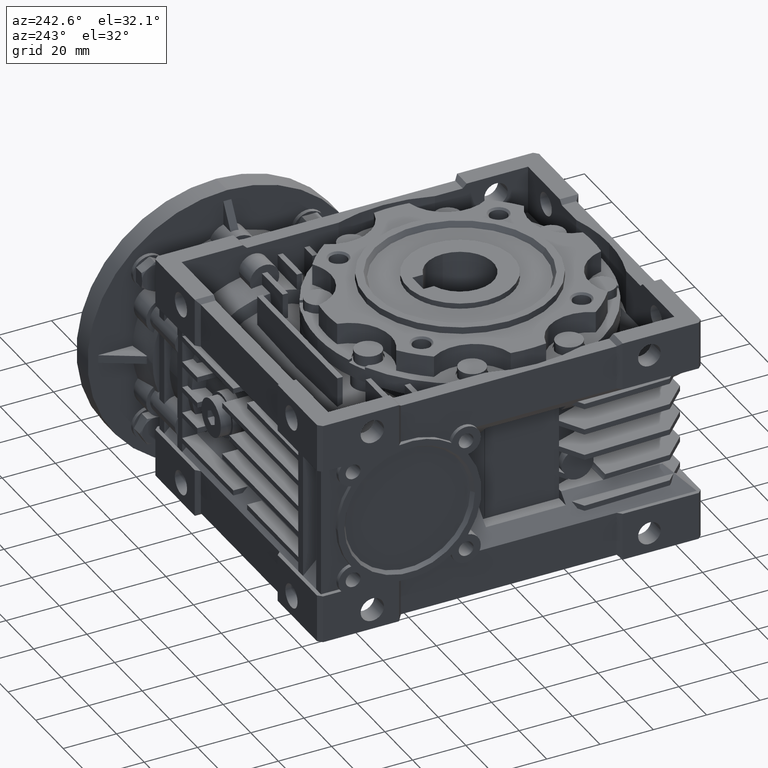
[diagram: clean part render]
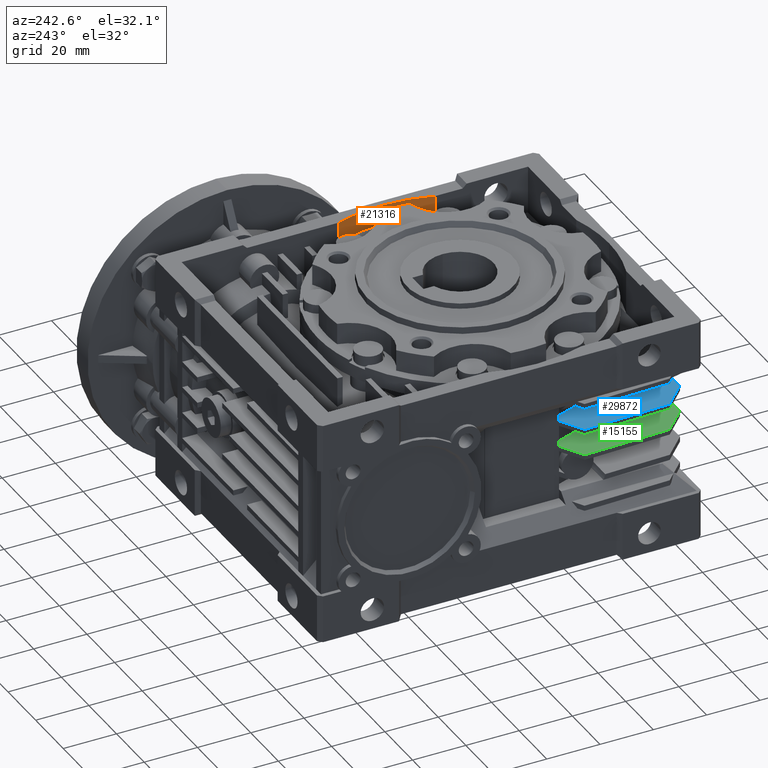
[diagram: same view with three faces highlighted in distinct colors, each labeled with its STEP entity id]
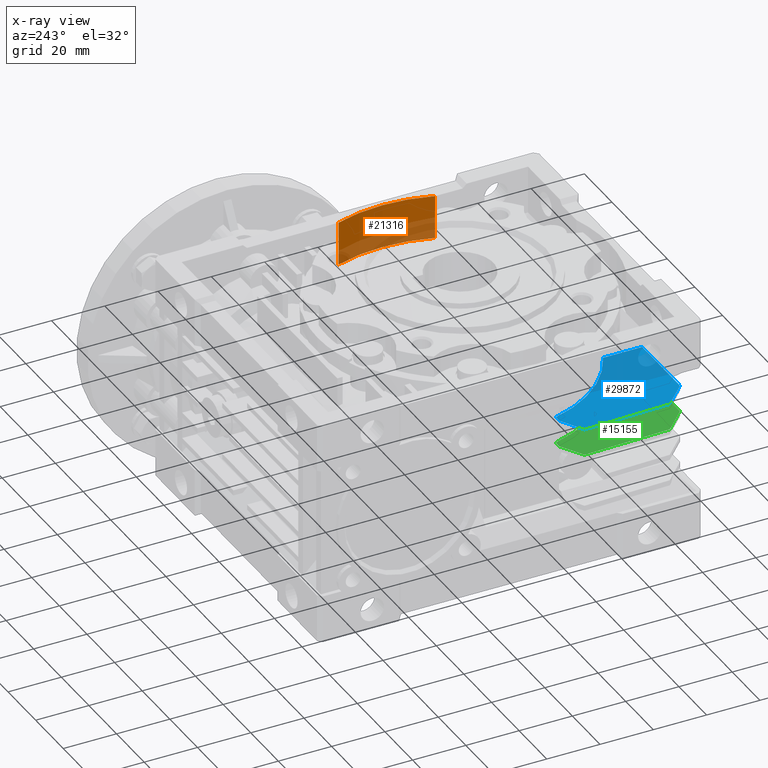
[diagram: x-ray of the same camera — body ghosted, the three highlighted faces saturated]
A machine part, auxiliary view with three faces highlighted in distinct colors.
The next image is the same camera in x-ray (body ghosted, the three faces saturated) — at least one of them is partly hidden behind the body in this view.
Their STEP definitions:

[orange] entity #21316 — the highlighted cylindrical surface (partial cylindrical patch) has radius 56 mm, axis along (0, 0, -1).
#3904 = AXIS2_PLACEMENT_3D ( 'NONE', #16636, #27628, #16260 ) ;
#4554 = EDGE_CURVE ( 'NONE', #33363, #10680, #21210, .T. ) ;
#5611 = CARTESIAN_POINT ( 'NONE',  ( 4.163336342344339551E-14, 0.000000000000000000, 24.50000000000000000 ) ) ;
#6002 = DIRECTION ( 'NONE',  ( 0.000000000000000000, -1.000000000000000000, 0.000000000000000000 ) ) ;
#6063 = DIRECTION ( 'NONE',  ( 0.000000000000000000, 0.000000000000000000, -1.000000000000000000 ) ) ;
#8054 = LINE ( 'NONE', #10585, #18014 ) ;
#9089 = DIRECTION ( 'NONE',  ( 0.000000000000000000, 0.000000000000000000, -1.000000000000000000 ) ) ;
#9527 = VERTEX_POINT ( 'NONE', #15281 ) ;
#10585 = CARTESIAN_POINT ( 'NONE',  ( 53.00000000000000000, 18.08314132002524843, 24.50000000000000000 ) ) ;
#10680 = VERTEX_POINT ( 'NONE', #29640 ) ;
#11014 = FACE_OUTER_BOUND ( 'NONE', #22181, .T. ) ;
#11491 = CARTESIAN_POINT ( 'NONE',  ( 53.00000000000000000, -18.08314132002524843, 24.50000000000000000 ) ) ;
#13552 = CARTESIAN_POINT ( 'NONE',  ( 53.00000000000000000, 18.08314132002524843, 41.00000000000000000 ) ) ;
#13631 = EDGE_CURVE ( 'NONE', #10680, #9527, #19783, .T. ) ;
#14299 = VERTEX_POINT ( 'NONE', #31873 ) ;
#15281 = CARTESIAN_POINT ( 'NONE',  ( 53.00000000000000000, -18.08314132002524843, 24.50000000000000000 ) ) ;
#15717 = ORIENTED_EDGE ( 'NONE', *, *, #13631, .F. ) ;
#15741 = ORIENTED_EDGE ( 'NONE', *, *, #4554, .F. ) ;
#16260 = DIRECTION ( 'NONE',  ( 0.000000000000000000, -1.000000000000000000, 0.000000000000000000 ) ) ;
#16636 = CARTESIAN_POINT ( 'NONE',  ( 4.163336342344339551E-14, 0.000000000000000000, 41.00000000000000000 ) ) ;
#18014 = VECTOR ( 'NONE', #34936, 1000.000000000000000 ) ;
#19119 = VECTOR ( 'NONE', #6063, 1000.000000000000000 ) ;
#19783 = LINE ( 'NONE', #11491, #19119 ) ;
#19857 = ORIENTED_EDGE ( 'NONE', *, *, #33929, .F. ) ;
#21210 = CIRCLE ( 'NONE', #3904, 56.00000000000000000 ) ;
#21316 = ADVANCED_FACE ( 'NONE', ( #11014 ), #27422, .F. ) ;
#22025 = DIRECTION ( 'NONE',  ( 0.000000000000000000, -1.000000000000000000, 0.000000000000000000 ) ) ;
#22132 = ORIENTED_EDGE ( 'NONE', *, *, #22257, .T. ) ;
#22181 = EDGE_LOOP ( 'NONE', ( #15717, #15741, #19857, #22132 ) ) ;
#22257 = EDGE_CURVE ( 'NONE', #14299, #9527, #33668, .T. ) ;
#25583 = AXIS2_PLACEMENT_3D ( 'NONE', #28541, #9089, #6002 ) ;
#27422 = CYLINDRICAL_SURFACE ( 'NONE', #33019, 56.00000000000000000 ) ;
#27628 = DIRECTION ( 'NONE',  ( 0.000000000000000000, 0.000000000000000000, -1.000000000000000000 ) ) ;
#28541 = CARTESIAN_POINT ( 'NONE',  ( 4.163336342344339551E-14, 0.000000000000000000, 24.50000000000000000 ) ) ;
#29640 = CARTESIAN_POINT ( 'NONE',  ( 53.00000000000000000, -18.08314132002524843, 41.00000000000000000 ) ) ;
#31873 = CARTESIAN_POINT ( 'NONE',  ( 53.00000000000000000, 18.08314132002524843, 24.50000000000000000 ) ) ;
#33019 = AXIS2_PLACEMENT_3D ( 'NONE', #5611, #33200, #22025 ) ;
#33200 = DIRECTION ( 'NONE',  ( 0.000000000000000000, 0.000000000000000000, -1.000000000000000000 ) ) ;
#33363 = VERTEX_POINT ( 'NONE', #13552 ) ;
#33668 = CIRCLE ( 'NONE', #25583, 56.00000000000000000 ) ;
#33929 = EDGE_CURVE ( 'NONE', #14299, #33363, #8054, .T. ) ;
#34936 = DIRECTION ( 'NONE',  ( 0.000000000000000000, 0.000000000000000000, 1.000000000000000000 ) ) ;

[blue] entity #29872 — the highlighted planar face has unit normal (0, -0, 1).
#408 = DIRECTION ( 'NONE',  ( 1.000000000000000000, 0.000000000000000000, 0.000000000000000000 ) ) ;
#833 = CARTESIAN_POINT ( 'NONE',  ( -48.50000000000000000, 0.000000000000000000, 11.00000000000000000 ) ) ;
#920 = VECTOR ( 'NONE', #408, 1000.000000000000000 ) ;
#1663 = VERTEX_POINT ( 'NONE', #11788 ) ;
#2452 = DIRECTION ( 'NONE',  ( 1.000000000000000000, 0.000000000000000000, 0.000000000000000000 ) ) ;
#2673 = CIRCLE ( 'NONE', #16497, 47.70000000000000284 ) ;
#2963 = DIRECTION ( 'NONE',  ( 0.000000000000000000, -0.000000000000000000, 1.000000000000000000 ) ) ;
#3289 = VERTEX_POINT ( 'NONE', #10345 ) ;
#3600 = CARTESIAN_POINT ( 'NONE',  ( -46.16589650380460341, -12.00000000000000000, 11.00000000000000000 ) ) ;
#4189 = VECTOR ( 'NONE', #7841, 1000.000000000000000 ) ;
#4208 = ORIENTED_EDGE ( 'NONE', *, *, #31276, .F. ) ;
#4559 = CARTESIAN_POINT ( 'NONE',  ( -48.50000000000000000, -11.86158260421231958, 11.00000000000000000 ) ) ;
#5016 = ORIENTED_EDGE ( 'NONE', *, *, #17977, .T. ) ;
#5410 = LINE ( 'NONE', #7793, #14662 ) ;
#5507 = LINE ( 'NONE', #11100, #25222 ) ;
#5789 = CARTESIAN_POINT ( 'NONE',  ( -56.26315238889289816, -49.55505613574150203, 11.00000000000000000 ) ) ;
#7793 = CARTESIAN_POINT ( 'NONE',  ( -57.39999999999999858, -17.00000000000000000, 11.00000000000000000 ) ) ;
#7841 = DIRECTION ( 'NONE',  ( 0.000000000000000000, 1.000000000000000000, 0.000000000000000000 ) ) ;
#8566 = FACE_OUTER_BOUND ( 'NONE', #14340, .T. ) ;
#9067 = AXIS2_PLACEMENT_3D ( 'NONE', #27660, #2963, #10907 ) ;
#9655 = EDGE_CURVE ( 'NONE', #31009, #11314, #5507, .T. ) ;
#9975 = CARTESIAN_POINT ( 'NONE',  ( -47.67348656626209902, -57.85000000000000142, 11.00000000000000000 ) ) ;
#10135 = ORIENTED_EDGE ( 'NONE', *, *, #9655, .F. ) ;
#10345 = CARTESIAN_POINT ( 'NONE',  ( -56.26315238889289816, -49.55505613574150203, 11.00000000000000000 ) ) ;
#10907 = DIRECTION ( 'NONE',  ( 0.000000000000000000, 1.000000000000000000, 0.000000000000000000 ) ) ;
#11100 = CARTESIAN_POINT ( 'NONE',  ( -46.00000000000000000, -12.00000000000000000, 11.00000000000000000 ) ) ;
#11314 = VERTEX_POINT ( 'NONE', #3600 ) ;
#11555 = DIRECTION ( 'NONE',  ( 0.7193398003386513029, -0.6946583704589972541, -0.000000000000000000 ) ) ;
#11788 = CARTESIAN_POINT ( 'NONE',  ( -20.37154878746334674, -57.85000000000000142, 11.00000000000000000 ) ) ;
#12449 = LINE ( 'NONE', #33739, #30429 ) ;
#12566 = LINE ( 'NONE', #833, #22285 ) ;
#12821 = EDGE_CURVE ( 'NONE', #17324, #3289, #12449, .T. ) ;
#13067 = CARTESIAN_POINT ( 'NONE',  ( -20.37154878746334674, -65.00000000000000000, 11.00000000000000000 ) ) ;
#13544 = LINE ( 'NONE', #5789, #25203 ) ;
#14340 = EDGE_LOOP ( 'NONE', ( #29451, #5016, #16545, #15457, #10135, #19073, #4208, #23039 ) ) ;
#14662 = VECTOR ( 'NONE', #21502, 1000.000000000000000 ) ;
#15457 = ORIENTED_EDGE ( 'NONE', *, *, #19514, .F. ) ;
#16310 = VERTEX_POINT ( 'NONE', #9975 ) ;
#16497 = AXIS2_PLACEMENT_3D ( 'NONE', #24725, #35546, #19126 ) ;
#16545 = ORIENTED_EDGE ( 'NONE', *, *, #34235, .T. ) ;
#16671 = PLANE ( 'NONE',  #9067 ) ;
#17324 = VERTEX_POINT ( 'NONE', #28255 ) ;
#17977 = EDGE_CURVE ( 'NONE', #16310, #1663, #30691, .T. ) ;
#19073 = ORIENTED_EDGE ( 'NONE', *, *, #19951, .T. ) ;
#19126 = DIRECTION ( 'NONE',  ( 0.000000000000000000, 1.000000000000000000, 0.000000000000000000 ) ) ;
#19514 = EDGE_CURVE ( 'NONE', #11314, #26842, #2673, .T. ) ;
#19714 = CARTESIAN_POINT ( 'NONE',  ( -0.000000000000000000, -57.85000000000000142, 11.00000000000000000 ) ) ;
#19951 = EDGE_CURVE ( 'NONE', #31009, #34686, #12566, .T. ) ;
#21502 = DIRECTION ( 'NONE',  ( 0.8660254037844387076, 0.4999999999999998890, 0.000000000000000000 ) ) ;
#22285 = VECTOR ( 'NONE', #33856, 1000.000000000000000 ) ;
#23039 = ORIENTED_EDGE ( 'NONE', *, *, #12821, .T. ) ;
#24725 = CARTESIAN_POINT ( 'NONE',  ( 0.000000000000000000, 0.000000000000000000, 11.00000000000000000 ) ) ;
#25203 = VECTOR ( 'NONE', #11555, 1000.000000000000114 ) ;
#25222 = VECTOR ( 'NONE', #2452, 1000.000000000000000 ) ;
#26842 = VERTEX_POINT ( 'NONE', #32412 ) ;
#27281 = LINE ( 'NONE', #13067, #4189 ) ;
#27660 = CARTESIAN_POINT ( 'NONE',  ( 0.000000000000000000, 0.000000000000000000, 11.00000000000000000 ) ) ;
#28255 = CARTESIAN_POINT ( 'NONE',  ( -57.39999999999999858, -17.00000000000000000, 11.00000000000000000 ) ) ;
#28501 = DIRECTION ( 'NONE',  ( 0.03489949670250024061, -0.9993908270190956511, -0.000000000000000000 ) ) ;
#29451 = ORIENTED_EDGE ( 'NONE', *, *, #30334, .T. ) ;
#29872 = ADVANCED_FACE ( 'NONE', ( #8566 ), #16671, .T. ) ;
#30334 = EDGE_CURVE ( 'NONE', #3289, #16310, #13544, .T. ) ;
#30429 = VECTOR ( 'NONE', #28501, 1000.000000000000114 ) ;
#30691 = LINE ( 'NONE', #19714, #920 ) ;
#31009 = VERTEX_POINT ( 'NONE', #32922 ) ;
#31276 = EDGE_CURVE ( 'NONE', #17324, #34686, #5410, .T. ) ;
#32412 = CARTESIAN_POINT ( 'NONE',  ( -20.37154878746334674, -43.13107928165025839, 11.00000000000000000 ) ) ;
#32922 = CARTESIAN_POINT ( 'NONE',  ( -48.50000000000000000, -12.00000000000000000, 11.00000000000000000 ) ) ;
#33739 = CARTESIAN_POINT ( 'NONE',  ( -57.39999999999999858, -17.00000000000000000, 11.00000000000000000 ) ) ;
#33856 = DIRECTION ( 'NONE',  ( 0.000000000000000000, 1.000000000000000000, 0.000000000000000000 ) ) ;
#34235 = EDGE_CURVE ( 'NONE', #1663, #26842, #27281, .T. ) ;
#34686 = VERTEX_POINT ( 'NONE', #4559 ) ;
#35546 = DIRECTION ( 'NONE',  ( 0.000000000000000000, 0.000000000000000000, 1.000000000000000000 ) ) ;

[green] entity #15155 — the highlighted planar face has unit normal (0, -0, 1).
#1129 = CARTESIAN_POINT ( 'NONE',  ( -56.26315238889289816, -49.55505613574150203, 1.000000000000000000 ) ) ;
#1411 = EDGE_CURVE ( 'NONE', #21886, #19171, #22036, .T. ) ;
#1445 = CARTESIAN_POINT ( 'NONE',  ( -46.16589650380460341, -12.00000000000000000, 1.000000000000000000 ) ) ;
#2799 = CARTESIAN_POINT ( 'NONE',  ( -19.87460691435179783, -65.00000000000000000, 1.000000000000000000 ) ) ;
#3077 = DIRECTION ( 'NONE',  ( 1.000000000000000000, 0.000000000000000000, 0.000000000000000000 ) ) ;
#3500 = LINE ( 'NONE', #2799, #14247 ) ;
#4123 = DIRECTION ( 'NONE',  ( 0.000000000000000000, 1.000000000000000000, 0.000000000000000000 ) ) ;
#4170 = EDGE_CURVE ( 'NONE', #12996, #16884, #3500, .T. ) ;
#4499 = ORIENTED_EDGE ( 'NONE', *, *, #5078, .F. ) ;
#4697 = CARTESIAN_POINT ( 'NONE',  ( -19.87460691435179783, -57.85000000000000142, 1.000000000000000000 ) ) ;
#5078 = EDGE_CURVE ( 'NONE', #15460, #16884, #28513, .T. ) ;
#5482 = DIRECTION ( 'NONE',  ( 0.000000000000000000, 1.000000000000000000, 0.000000000000000000 ) ) ;
#5810 = CARTESIAN_POINT ( 'NONE',  ( -19.87460691435179783, -43.36231082403244130, 1.000000000000000000 ) ) ;
#6131 = VECTOR ( 'NONE', #18586, 1000.000000000000227 ) ;
#7208 = CARTESIAN_POINT ( 'NONE',  ( -57.39999999999999858, -17.00000000000000000, 1.000000000000000000 ) ) ;
#7852 = EDGE_LOOP ( 'NONE', ( #26655, #33135, #27245, #4499, #26491, #21304, #21286, #18285 ) ) ;
#7971 = DIRECTION ( 'NONE',  ( 1.000000000000000000, 0.000000000000000000, 0.000000000000000000 ) ) ;
#8335 = EDGE_CURVE ( 'NONE', #9983, #23918, #34815, .T. ) ;
#8494 = CARTESIAN_POINT ( 'NONE',  ( -46.00000000000000000, -12.00000000000000000, 1.000000000000000000 ) ) ;
#9352 = VERTEX_POINT ( 'NONE', #19804 ) ;
#9967 = CARTESIAN_POINT ( 'NONE',  ( 0.000000000000000000, 0.000000000000000000, 1.000000000000000000 ) ) ;
#9983 = VERTEX_POINT ( 'NONE', #1129 ) ;
#10330 = LINE ( 'NONE', #29422, #29174 ) ;
#10491 = LINE ( 'NONE', #26535, #11377 ) ;
#11377 = VECTOR ( 'NONE', #7971, 1000.000000000000000 ) ;
#11878 = DIRECTION ( 'NONE',  ( 0.000000000000000000, 0.000000000000000000, 1.000000000000000000 ) ) ;
#12297 = EDGE_CURVE ( 'NONE', #23918, #12996, #10491, .T. ) ;
#12841 = DIRECTION ( 'NONE',  ( 0.000000000000000000, 1.000000000000000000, 0.000000000000000000 ) ) ;
#12996 = VERTEX_POINT ( 'NONE', #4697 ) ;
#14247 = VECTOR ( 'NONE', #5482, 1000.000000000000000 ) ;
#15155 = ADVANCED_FACE ( 'NONE', ( #23680 ), #18608, .T. ) ;
#15460 = VERTEX_POINT ( 'NONE', #1445 ) ;
#15701 = AXIS2_PLACEMENT_3D ( 'NONE', #9967, #31967, #12841 ) ;
#15724 = DIRECTION ( 'NONE',  ( -0.8660254037844387076, -0.4999999999999998890, 0.000000000000000000 ) ) ;
#16408 = VECTOR ( 'NONE', #29215, 1000.000000000000114 ) ;
#16884 = VERTEX_POINT ( 'NONE', #5810 ) ;
#18233 = CARTESIAN_POINT ( 'NONE',  ( -56.26315238889289816, -49.55505613574150203, 1.000000000000000000 ) ) ;
#18285 = ORIENTED_EDGE ( 'NONE', *, *, #26408, .T. ) ;
#18586 = DIRECTION ( 'NONE',  ( 0.7193398003386507478, -0.6946583704589976982, -0.000000000000000000 ) ) ;
#18608 = PLANE ( 'NONE',  #15701 ) ;
#19171 = VERTEX_POINT ( 'NONE', #33053 ) ;
#19482 = CARTESIAN_POINT ( 'NONE',  ( -47.67348656626209902, -57.85000000000000142, 1.000000000000000000 ) ) ;
#19556 = EDGE_CURVE ( 'NONE', #21886, #15460, #33194, .T. ) ;
#19804 = CARTESIAN_POINT ( 'NONE',  ( -57.39999999999999858, -17.00000000000000000, 1.000000000000000000 ) ) ;
#20756 = LINE ( 'NONE', #7208, #16408 ) ;
#21286 = ORIENTED_EDGE ( 'NONE', *, *, #24946, .T. ) ;
#21304 = ORIENTED_EDGE ( 'NONE', *, *, #1411, .T. ) ;
#21886 = VERTEX_POINT ( 'NONE', #32532 ) ;
#22036 = LINE ( 'NONE', #33021, #23573 ) ;
#22841 = VECTOR ( 'NONE', #3077, 1000.000000000000000 ) ;
#23573 = VECTOR ( 'NONE', #25270, 1000.000000000000000 ) ;
#23680 = FACE_OUTER_BOUND ( 'NONE', #7852, .T. ) ;
#23918 = VERTEX_POINT ( 'NONE', #19482 ) ;
#24946 = EDGE_CURVE ( 'NONE', #19171, #9352, #10330, .T. ) ;
#25270 = DIRECTION ( 'NONE',  ( 0.000000000000000000, 1.000000000000000000, 0.000000000000000000 ) ) ;
#26408 = EDGE_CURVE ( 'NONE', #9352, #9983, #20756, .T. ) ;
#26491 = ORIENTED_EDGE ( 'NONE', *, *, #19556, .F. ) ;
#26535 = CARTESIAN_POINT ( 'NONE',  ( -0.000000000000000000, -57.85000000000000142, 1.000000000000000000 ) ) ;
#26655 = ORIENTED_EDGE ( 'NONE', *, *, #8335, .T. ) ;
#27245 = ORIENTED_EDGE ( 'NONE', *, *, #4170, .T. ) ;
#27942 = AXIS2_PLACEMENT_3D ( 'NONE', #28825, #11878, #4123 ) ;
#28513 = CIRCLE ( 'NONE', #27942, 47.70000000000000284 ) ;
#28825 = CARTESIAN_POINT ( 'NONE',  ( 0.000000000000000000, 0.000000000000000000, 1.000000000000000000 ) ) ;
#29174 = VECTOR ( 'NONE', #15724, 1000.000000000000000 ) ;
#29215 = DIRECTION ( 'NONE',  ( 0.03489949670250003244, -0.9993908270190956511, -0.000000000000000000 ) ) ;
#29422 = CARTESIAN_POINT ( 'NONE',  ( -57.39999999999999858, -17.00000000000000000, 1.000000000000000000 ) ) ;
#31967 = DIRECTION ( 'NONE',  ( 0.000000000000000000, -0.000000000000000000, 1.000000000000000000 ) ) ;
#32532 = CARTESIAN_POINT ( 'NONE',  ( -48.50000000000000000, -12.00000000000000000, 1.000000000000000000 ) ) ;
#33021 = CARTESIAN_POINT ( 'NONE',  ( -48.50000000000000000, 0.000000000000000000, 1.000000000000000000 ) ) ;
#33053 = CARTESIAN_POINT ( 'NONE',  ( -48.50000000000000000, -11.86158260421231958, 1.000000000000000000 ) ) ;
#33135 = ORIENTED_EDGE ( 'NONE', *, *, #12297, .T. ) ;
#33194 = LINE ( 'NONE', #8494, #22841 ) ;
#34815 = LINE ( 'NONE', #18233, #6131 ) ;